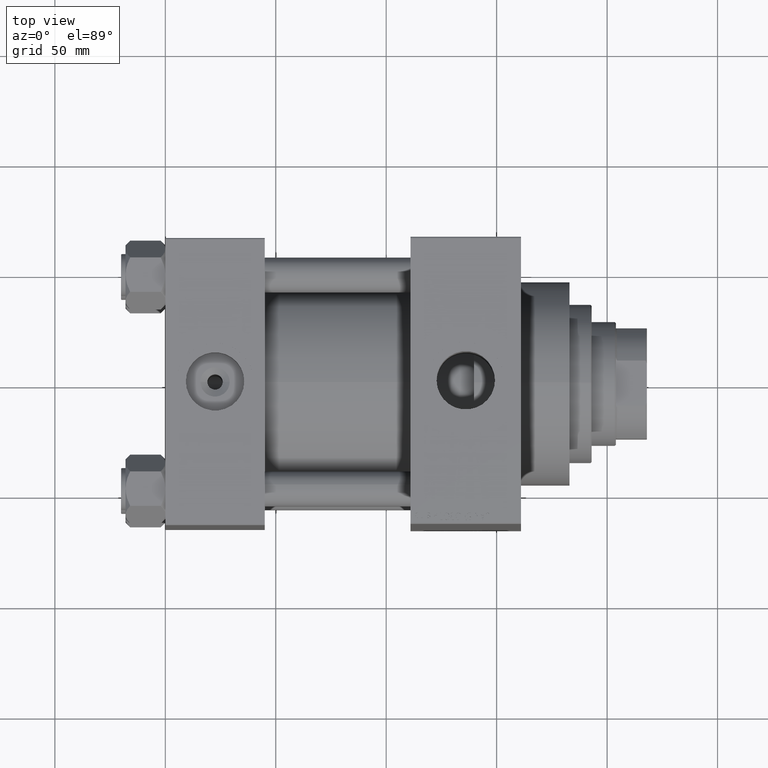
[diagram: clean part render]
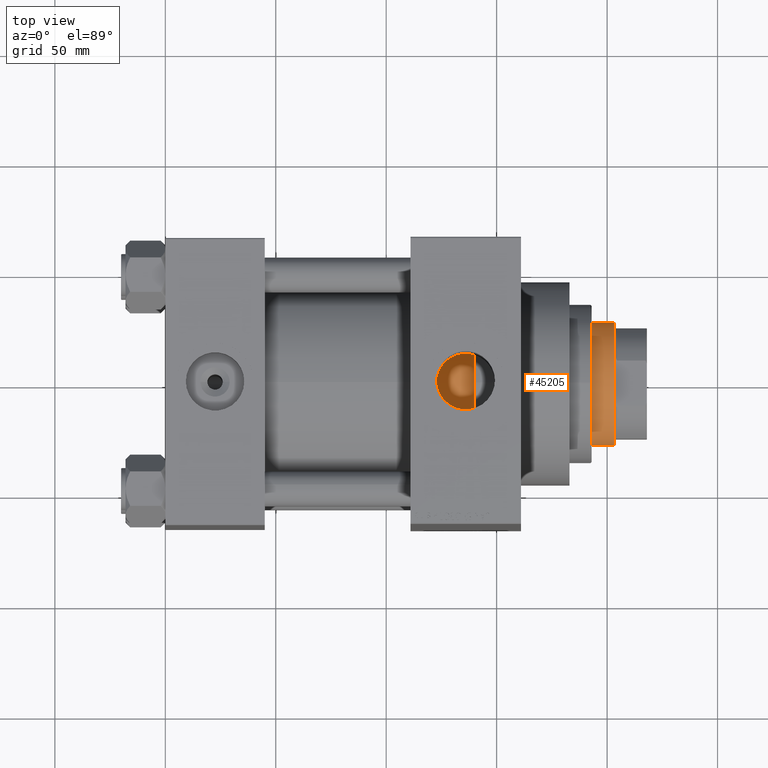
[diagram: same view with one face highlighted and labeled with its STEP entity id]
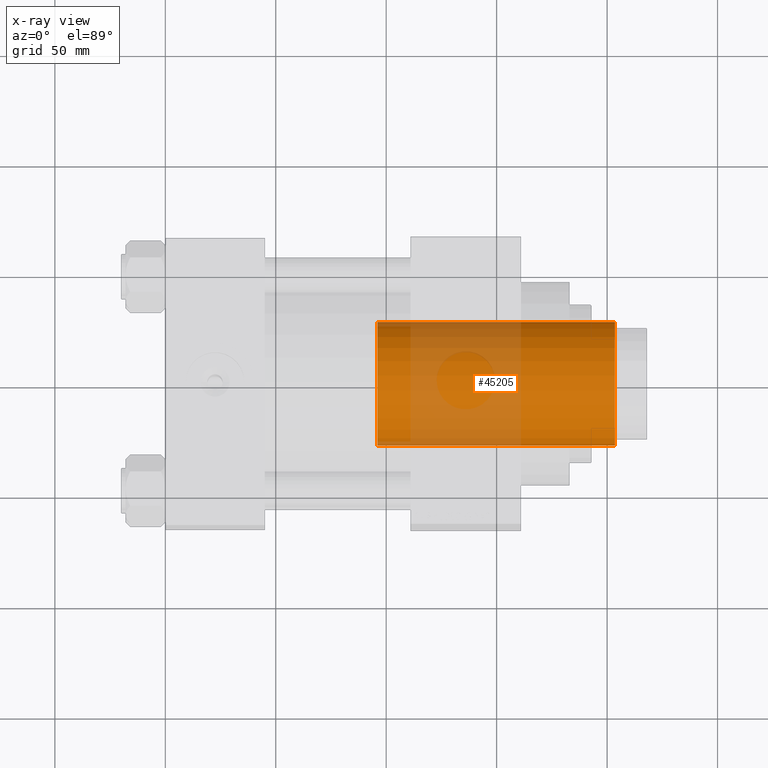
[diagram: x-ray of the same camera — body ghosted, the highlighted face saturated]
A machine part, top view. The second image highlights one B-rep face of the part: STEP entity #45205.
The next image is the same camera in x-ray: the body ghosted, the highlighted face saturated — about 39% of this face is hidden behind the body in this view.
In plain terms, the highlighted cylindrical surface (partial cylindrical patch) has radius 28 mm, axis along (-1, 0, 0).
Its self-contained STEP definition (entity closure, byte-faithful):
#332 = VECTOR ( 'NONE', #25925, 1000.000000000000000 ) ;
#702 = VERTEX_POINT ( 'NONE', #33049 ) ;
#705 = DIRECTION ( 'NONE',  ( 1.000000000000000000, 0.000000000000000000, 0.000000000000000000 ) ) ;
#5104 = CIRCLE ( 'NONE', #12061, 28.00000000000000000 ) ;
#5192 = ORIENTED_EDGE ( 'NONE', *, *, #5221, .T. ) ;
#5221 = EDGE_CURVE ( 'NONE', #34067, #702, #5104, .T. ) ;
#6902 = ORIENTED_EDGE ( 'NONE', *, *, #40096, .T. ) ;
#8302 = LINE ( 'NONE', #37506, #332 ) ;
#9253 = EDGE_CURVE ( 'NONE', #34067, #35700, #32164, .T. ) ;
#10638 = VECTOR ( 'NONE', #32634, 1000.000000000000000 ) ;
#12021 = CARTESIAN_POINT ( 'NONE',  ( 0.000000000000000000, 0.000000000000000000, 159.0000000000000000 ) ) ;
#12061 = AXIS2_PLACEMENT_3D ( 'NONE', #33552, #29679, #705 ) ;
#12973 = ORIENTED_EDGE ( 'NONE', *, *, #29205, .T. ) ;
#15639 = DIRECTION ( 'NONE',  ( -0.000000000000000000, -0.000000000000000000, -1.000000000000000000 ) ) ;
#15767 = AXIS2_PLACEMENT_3D ( 'NONE', #32779, #47493, #18271 ) ;
#17845 = CARTESIAN_POINT ( 'NONE',  ( 28.00000000000000000, 3.429011037612589276E-15, 51.00000000000000000 ) ) ;
#18271 = DIRECTION ( 'NONE',  ( 1.000000000000000000, 0.000000000000000000, 0.000000000000000000 ) ) ;
#18516 = CARTESIAN_POINT ( 'NONE',  ( -28.00000000000000000, 0.000000000000000000, 51.00000000000000000 ) ) ;
#20512 = EDGE_LOOP ( 'NONE', ( #20855, #5192, #6902, #12973 ) ) ;
#20728 = VERTEX_POINT ( 'NONE', #18516 ) ;
#20855 = ORIENTED_EDGE ( 'NONE', *, *, #9253, .F. ) ;
#23841 = CYLINDRICAL_SURFACE ( 'NONE', #47517, 28.00000000000000000 ) ;
#25925 = DIRECTION ( 'NONE',  ( -0.000000000000000000, -0.000000000000000000, -1.000000000000000000 ) ) ;
#29205 = EDGE_CURVE ( 'NONE', #20728, #35700, #36580, .T. ) ;
#29679 = DIRECTION ( 'NONE',  ( 0.000000000000000000, 0.000000000000000000, -1.000000000000000000 ) ) ;
#31984 = CARTESIAN_POINT ( 'NONE',  ( 28.00000000000000000, 3.429011037612589276E-15, 158.5000000000000000 ) ) ;
#32164 = LINE ( 'NONE', #47111, #10638 ) ;
#32634 = DIRECTION ( 'NONE',  ( -0.000000000000000000, -0.000000000000000000, -1.000000000000000000 ) ) ;
#32779 = CARTESIAN_POINT ( 'NONE',  ( 0.000000000000000000, 0.000000000000000000, 51.00000000000000000 ) ) ;
#33049 = CARTESIAN_POINT ( 'NONE',  ( -28.00000000000000000, 0.000000000000000000, 158.5000000000000000 ) ) ;
#33552 = CARTESIAN_POINT ( 'NONE',  ( 0.000000000000000000, 0.000000000000000000, 158.5000000000000000 ) ) ;
#34067 = VERTEX_POINT ( 'NONE', #31984 ) ;
#34725 = DIRECTION ( 'NONE',  ( -1.000000000000000000, 0.000000000000000000, 0.000000000000000000 ) ) ;
#35700 = VERTEX_POINT ( 'NONE', #17845 ) ;
#36580 = CIRCLE ( 'NONE', #15767, 28.00000000000000000 ) ;
#37506 = CARTESIAN_POINT ( 'NONE',  ( -28.00000000000000000, 0.000000000000000000, 159.0000000000000000 ) ) ;
#40096 = EDGE_CURVE ( 'NONE', #702, #20728, #8302, .T. ) ;
#45085 = FACE_OUTER_BOUND ( 'NONE', #20512, .T. ) ;
#45205 = ADVANCED_FACE ( 'NONE', ( #45085 ), #23841, .T. ) ;
#47111 = CARTESIAN_POINT ( 'NONE',  ( 28.00000000000000000, 3.429011037612589276E-15, 159.0000000000000000 ) ) ;
#47493 = DIRECTION ( 'NONE',  ( 0.000000000000000000, 0.000000000000000000, 1.000000000000000000 ) ) ;
#47517 = AXIS2_PLACEMENT_3D ( 'NONE', #12021, #15639, #34725 ) ;